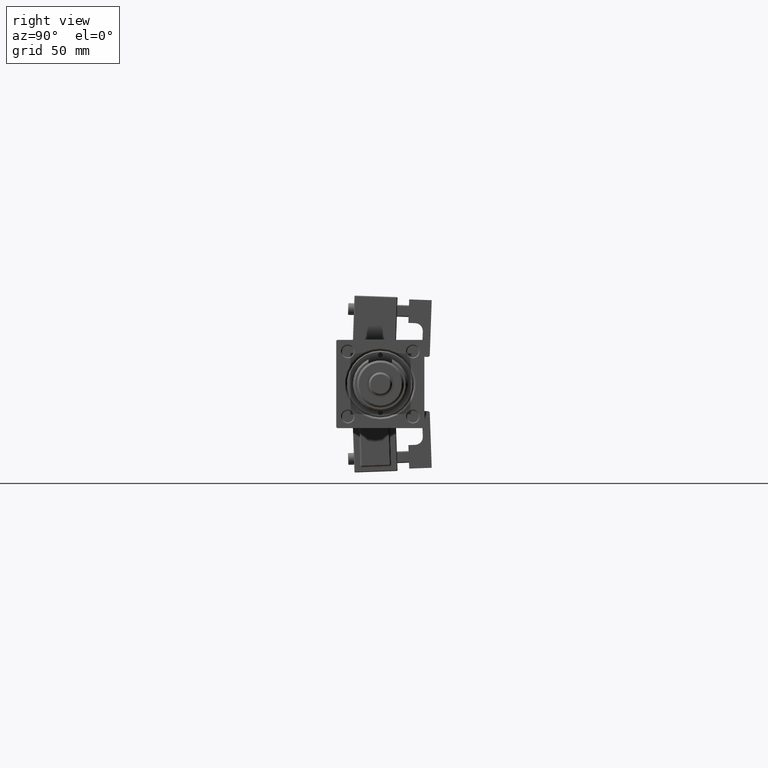
[diagram: clean part render]
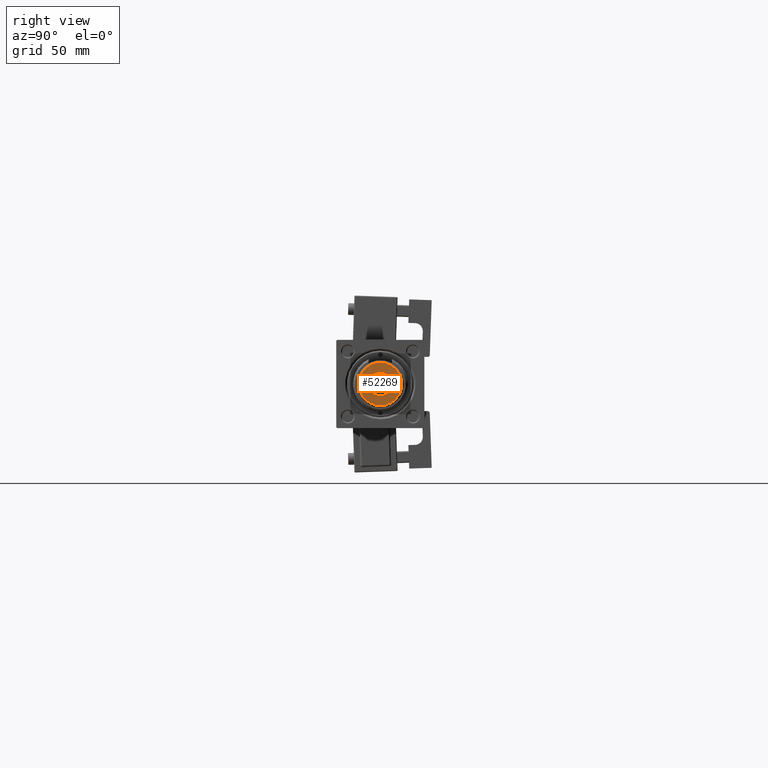
[diagram: same view with one face highlighted and labeled with its STEP entity id]
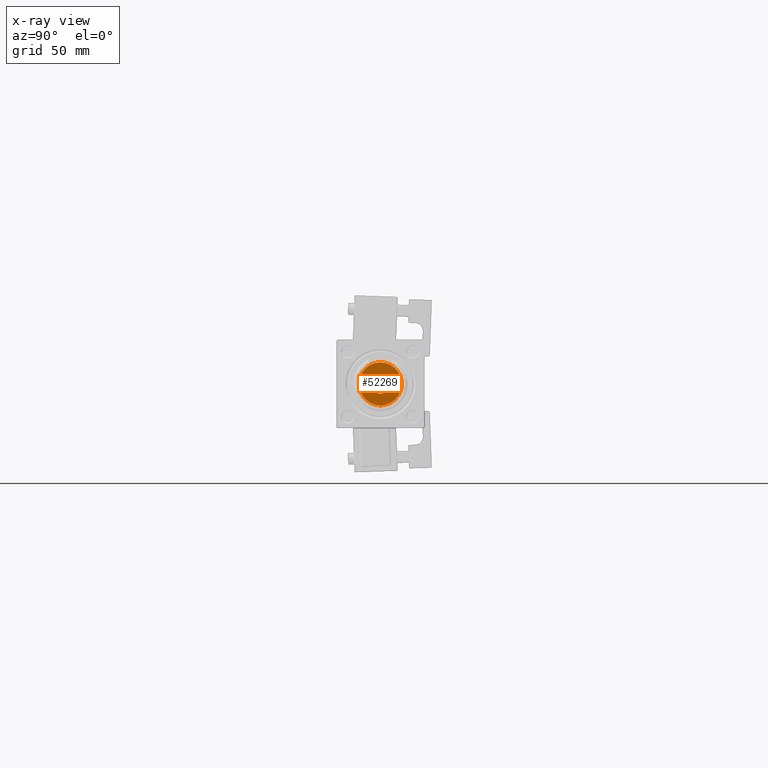
[diagram: x-ray of the same camera — body ghosted, the highlighted face saturated]
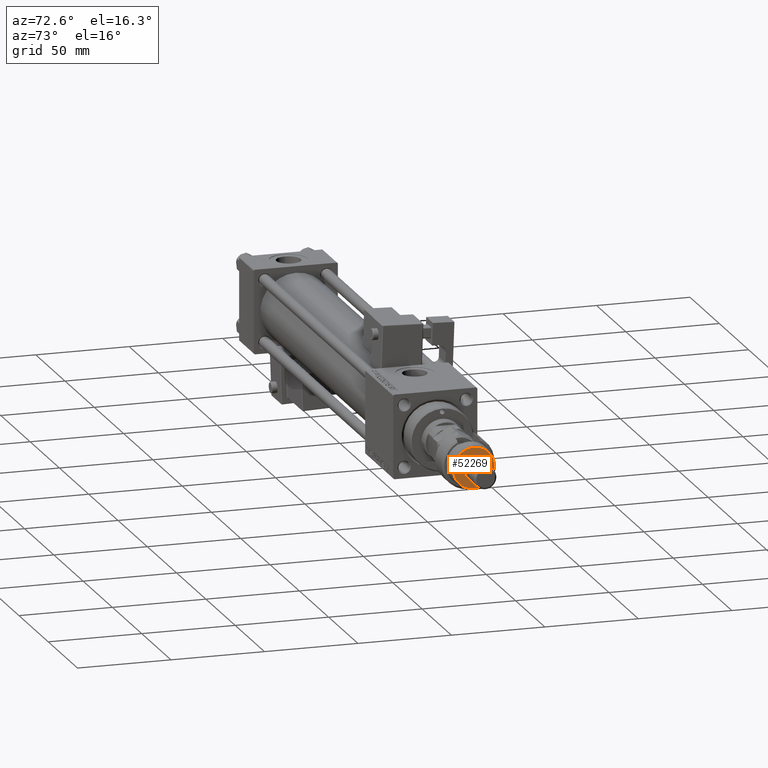
[diagram: same view with one face highlighted and labeled with its STEP entity id]
A machine part, right view. The second image highlights one B-rep face of the part: STEP entity #52269.
The next image is the same camera in x-ray: the body ghosted, the highlighted face saturated — about 0% of this face is hidden behind the body in this view.
A second angle (auxiliary view) of the same face is appended — the face is thin or edge-on in the first view.
In plain terms, the highlighted planar face has unit normal (1, 0, 0).
Its self-contained STEP definition (entity closure, byte-faithful):
#1945 = EDGE_CURVE ( 'NONE', #13615, #40943, #35605, .T. ) ;
#2411 = AXIS2_PLACEMENT_3D ( 'NONE', #26084, #51609, #21066 ) ;
#3840 = CARTESIAN_POINT ( 'NONE',  ( 0.000000000000000000, 0.000000000000000000, 22.00000000000000000 ) ) ;
#4761 = CARTESIAN_POINT ( 'NONE',  ( 0.000000000000000000, 0.000000000000000000, 22.00000000000000000 ) ) ;
#7091 = AXIS2_PLACEMENT_3D ( 'NONE', #4761, #34709, #38943 ) ;
#7762 = DIRECTION ( 'NONE',  ( 0.000000000000000000, 0.000000000000000000, 1.000000000000000000 ) ) ;
#7873 = ORIENTED_EDGE ( 'NONE', *, *, #1945, .F. ) ;
#9256 = CIRCLE ( 'NONE', #30717, 10.99999999999999645 ) ;
#10834 = DIRECTION ( 'NONE',  ( 1.000000000000000000, 0.000000000000000000, 0.000000000000000000 ) ) ;
#11450 = AXIS2_PLACEMENT_3D ( 'NONE', #30698, #43337, #48855 ) ;
#12636 = CARTESIAN_POINT ( 'NONE',  ( 5.000000000000000000, 6.123233995736766282E-16, 22.00000000000000000 ) ) ;
#13615 = VERTEX_POINT ( 'NONE', #43507 ) ;
#15116 = CARTESIAN_POINT ( 'NONE',  ( 10.99999999999999645, 1.408343819019456176E-15, 22.00000000000000000 ) ) ;
#20391 = EDGE_LOOP ( 'NONE', ( #7873, #34076 ) ) ;
#21066 = DIRECTION ( 'NONE',  ( 1.000000000000000000, 0.000000000000000000, 0.000000000000000000 ) ) ;
#22423 = VERTEX_POINT ( 'NONE', #15116 ) ;
#23885 = ORIENTED_EDGE ( 'NONE', *, *, #47105, .T. ) ;
#24838 = DIRECTION ( 'NONE',  ( 1.000000000000000000, 0.000000000000000000, 0.000000000000000000 ) ) ;
#25882 = ORIENTED_EDGE ( 'NONE', *, *, #36121, .T. ) ;
#26084 = CARTESIAN_POINT ( 'NONE',  ( 0.000000000000000000, 0.000000000000000000, 22.00000000000000000 ) ) ;
#26562 = CIRCLE ( 'NONE', #33728, 5.000000000000000000 ) ;
#27427 = CIRCLE ( 'NONE', #2411, 10.99999999999999645 ) ;
#30698 = CARTESIAN_POINT ( 'NONE',  ( 0.000000000000000000, 0.000000000000000000, 22.00000000000000000 ) ) ;
#30717 = AXIS2_PLACEMENT_3D ( 'NONE', #3840, #7762, #24838 ) ;
#33261 = CARTESIAN_POINT ( 'NONE',  ( -10.99999999999999645, 0.000000000000000000, 22.00000000000000000 ) ) ;
#33728 = AXIS2_PLACEMENT_3D ( 'NONE', #48419, #39999, #10834 ) ;
#34076 = ORIENTED_EDGE ( 'NONE', *, *, #45434, .F. ) ;
#34444 = FACE_BOUND ( 'NONE', #20391, .T. ) ;
#34709 = DIRECTION ( 'NONE',  ( 0.000000000000000000, 0.000000000000000000, 1.000000000000000000 ) ) ;
#35605 = CIRCLE ( 'NONE', #11450, 5.000000000000000000 ) ;
#36121 = EDGE_CURVE ( 'NONE', #22423, #47758, #9256, .T. ) ;
#38943 = DIRECTION ( 'NONE',  ( 1.000000000000000000, 0.000000000000000000, -0.000000000000000000 ) ) ;
#39999 = DIRECTION ( 'NONE',  ( 0.000000000000000000, 0.000000000000000000, 1.000000000000000000 ) ) ;
#40943 = VERTEX_POINT ( 'NONE', #12636 ) ;
#43337 = DIRECTION ( 'NONE',  ( 0.000000000000000000, 0.000000000000000000, 1.000000000000000000 ) ) ;
#43507 = CARTESIAN_POINT ( 'NONE',  ( -5.000000000000000000, 0.000000000000000000, 22.00000000000000000 ) ) ;
#45434 = EDGE_CURVE ( 'NONE', #40943, #13615, #26562, .T. ) ;
#47105 = EDGE_CURVE ( 'NONE', #47758, #22423, #27427, .T. ) ;
#47758 = VERTEX_POINT ( 'NONE', #33261 ) ;
#48419 = CARTESIAN_POINT ( 'NONE',  ( 0.000000000000000000, 0.000000000000000000, 22.00000000000000000 ) ) ;
#48855 = DIRECTION ( 'NONE',  ( 1.000000000000000000, 0.000000000000000000, 0.000000000000000000 ) ) ;
#51558 = PLANE ( 'NONE',  #7091 ) ;
#51609 = DIRECTION ( 'NONE',  ( 0.000000000000000000, 0.000000000000000000, 1.000000000000000000 ) ) ;
#52269 = ADVANCED_FACE ( 'NONE', ( #52385, #34444 ), #51558, .T. ) ;
#52385 = FACE_OUTER_BOUND ( 'NONE', #52810, .T. ) ;
#52810 = EDGE_LOOP ( 'NONE', ( #23885, #25882 ) ) ;